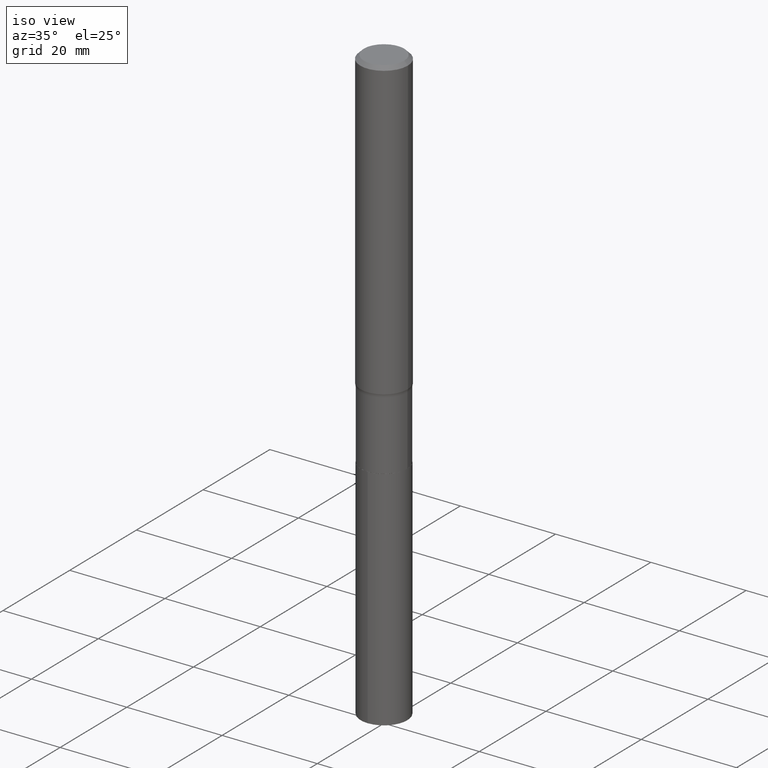
[diagram: clean part render]
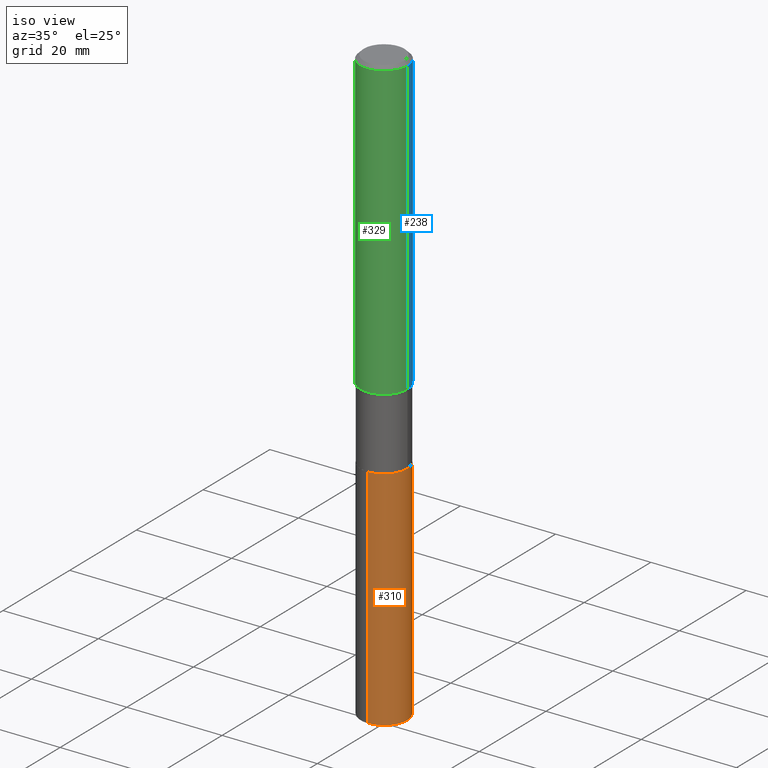
[diagram: same view with three faces highlighted in distinct colors, each labeled with its STEP entity id]
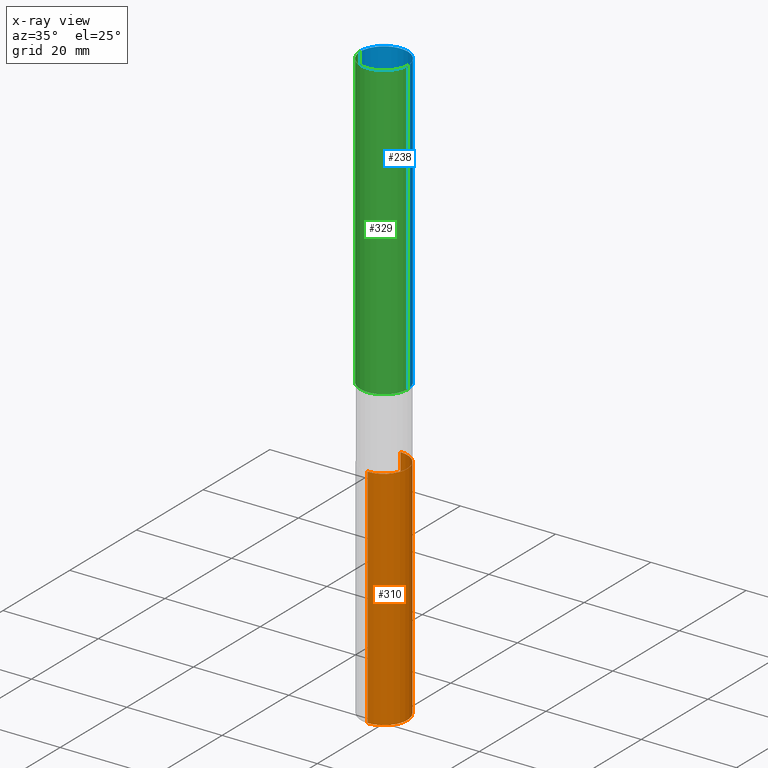
[diagram: x-ray of the same camera — body ghosted, the three highlighted faces saturated]
A machine part, iso view with three faces highlighted in distinct colors.
The next image is the same camera in x-ray (body ghosted, the three faces saturated) — at least one of them is partly hidden behind the body in this view.
Their STEP definitions:

[orange] entity #310 — the highlighted cylindrical surface (edge-blend (fillet) strip) has radius 4.8997 mm, axis along (-0, 0, 1).
#12 = DIRECTION ( 'NONE',  ( -2.445466196410267500E-29, 3.491485076189297312E-15, 1.000000000000000000 ) ) ;
#17 = DIRECTION ( 'NONE',  ( -2.445466196410267781E-29, 3.491485076189296917E-15, 1.000000000000000000 ) ) ;
#36 = VECTOR ( 'NONE', #391, 39.37007874015748143 ) ;
#43 = DIRECTION ( 'NONE',  ( -2.445466196410267781E-29, 3.491485076189296917E-15, 1.000000000000000000 ) ) ;
#51 = EDGE_LOOP ( 'NONE', ( #159, #268, #207, #226 ) ) ;
#91 = CARTESIAN_POINT ( 'NONE',  ( -1.347013500525606121E-15, -0.1929000000000105908, -3.042299999999998672 ) ) ;
#97 = EDGE_CURVE ( 'NONE', #264, #194, #311, .T. ) ;
#100 = DIRECTION ( 'NONE',  ( -6.982962677686265133E-15, -1.000000000000000000, 2.832398127179122126E-15 ) ) ;
#108 = CARTESIAN_POINT ( 'NONE',  ( 1.370636937281307327E-15, 0.1928999999999893578, -3.042300000000000004 ) ) ;
#128 = DIRECTION ( 'NONE',  ( -6.982962677686265133E-15, -1.000000000000000000, 2.832398127179122126E-15 ) ) ;
#142 = CARTESIAN_POINT ( 'NONE',  ( 1.203488073211193522E-28, -1.718263413532219501E-14, -4.921300000000000452 ) ) ;
#150 = EDGE_CURVE ( 'NONE', #194, #410, #437, .T. ) ;
#159 = ORIENTED_EDGE ( 'NONE', *, *, #269, .T. ) ;
#161 = CARTESIAN_POINT ( 'NONE',  ( 1.370636937281330401E-15, 0.1928999999999828074, -4.921300000000002228 ) ) ;
#194 = VERTEX_POINT ( 'NONE', #246 ) ;
#202 = DIRECTION ( 'NONE',  ( -6.982962677686265133E-15, -1.000000000000000000, 5.664796254358244252E-15 ) ) ;
#204 = VECTOR ( 'NONE', #12, 39.37007874015748143 ) ;
#207 = ORIENTED_EDGE ( 'NONE', *, *, #150, .F. ) ;
#222 = CARTESIAN_POINT ( 'NONE',  ( 7.439849749057039047E-29, -1.062213367716249950E-14, -3.042299999999999560 ) ) ;
#226 = ORIENTED_EDGE ( 'NONE', *, *, #97, .F. ) ;
#242 = AXIS2_PLACEMENT_3D ( 'NONE', #142, #330, #202 ) ;
#246 = CARTESIAN_POINT ( 'NONE',  ( -1.347013500525606121E-15, -0.1929000000000105908, -3.042299999999998672 ) ) ;
#264 = VERTEX_POINT ( 'NONE', #434 ) ;
#268 = ORIENTED_EDGE ( 'NONE', *, *, #290, .T. ) ;
#269 = EDGE_CURVE ( 'NONE', #264, #405, #438, .T. ) ;
#290 = EDGE_CURVE ( 'NONE', #405, #410, #413, .T. ) ;
#310 = ADVANCED_FACE ( 'NONE', ( #460 ), #359, .T. ) ;
#311 = LINE ( 'NONE', #91, #204 ) ;
#315 = AXIS2_PLACEMENT_3D ( 'NONE', #448, #17, #128 ) ;
#330 = DIRECTION ( 'NONE',  ( -2.445466196410267781E-29, 3.491485076189296917E-15, 1.000000000000000000 ) ) ;
#359 = CYLINDRICAL_SURFACE ( 'NONE', #451, 0.1928999999999999881 ) ;
#386 = CARTESIAN_POINT ( 'NONE',  ( 1.370636937281353870E-15, 0.1928999999999893855, -3.042300000000000004 ) ) ;
#391 = DIRECTION ( 'NONE',  ( -2.445466196410267500E-29, 3.491485076189297312E-15, 1.000000000000000000 ) ) ;
#405 = VERTEX_POINT ( 'NONE', #161 ) ;
#410 = VERTEX_POINT ( 'NONE', #386 ) ;
#413 = LINE ( 'NONE', #108, #36 ) ;
#434 = CARTESIAN_POINT ( 'NONE',  ( -1.347013500525560170E-15, -0.1929000000000171411, -4.921299999999999564 ) ) ;
#437 = CIRCLE ( 'NONE', #315, 0.1928999999999999881 ) ;
#438 = CIRCLE ( 'NONE', #242, 0.1928999999999999881 ) ;
#448 = CARTESIAN_POINT ( 'NONE',  ( 7.439849749057039047E-29, -1.062213367716249950E-14, -3.042299999999999560 ) ) ;
#451 = AXIS2_PLACEMENT_3D ( 'NONE', #222, #43, #100 ) ;
#460 = FACE_OUTER_BOUND ( 'NONE', #51, .T. ) ;

[blue] entity #238 — the highlighted cylindrical surface (edge-blend (fillet) strip) has radius 5 mm, axis along (-0, 0, 1).
#8 = VECTOR ( 'NONE', #34, 39.37007874015748143 ) ;
#15 = CIRCLE ( 'NONE', #302, 0.1968500000000003580 ) ;
#20 = DIRECTION ( 'NONE',  ( -2.445468806185136597E-29, 3.491481338843145583E-15, 1.000000000000000000 ) ) ;
#23 = CIRCLE ( 'NONE', #369, 0.1968500000000000250 ) ;
#24 = CARTESIAN_POINT ( 'NONE',  ( 0.1968500000000000250, -1.477690918335233294E-15, -0.02952750000000018901 ) ) ;
#34 = DIRECTION ( 'NONE',  ( -2.445468806185136877E-29, 3.491481338843145188E-15, 1.000000000000000000 ) ) ;
#80 = VERTEX_POINT ( 'NONE', #24 ) ;
#111 = EDGE_LOOP ( 'NONE', ( #160, #231, #321, #263 ) ) ;
#123 = VERTEX_POINT ( 'NONE', #343 ) ;
#124 = DIRECTION ( 'NONE',  ( -2.445468806185136877E-29, 3.491481338843145188E-15, 1.000000000000000000 ) ) ;
#127 = CARTESIAN_POINT ( 'NONE',  ( 0.1968500000000001915, -1.374596203102542989E-15, 9.598753983154309266E-30 ) ) ;
#148 = FACE_OUTER_BOUND ( 'NONE', #111, .T. ) ;
#160 = ORIENTED_EDGE ( 'NONE', *, *, #337, .T. ) ;
#198 = EDGE_CURVE ( 'NONE', #123, #80, #385, .T. ) ;
#221 = DIRECTION ( 'NONE',  ( -2.445468806185136597E-29, 3.491481338843145583E-15, 1.000000000000000000 ) ) ;
#227 = DIRECTION ( 'NONE',  ( 1.000000000000000000, -6.982962677686266711E-15, 4.876176775795935793E-29 ) ) ;
#231 = ORIENTED_EDGE ( 'NONE', *, *, #468, .T. ) ;
#238 = ADVANCED_FACE ( 'NONE', ( #148 ), #351, .T. ) ;
#263 = ORIENTED_EDGE ( 'NONE', *, *, #198, .F. ) ;
#293 = AXIS2_PLACEMENT_3D ( 'NONE', #456, #221, #227 ) ;
#296 = CARTESIAN_POINT ( 'NONE',  ( -0.1968500000000003858, -7.143459362756318299E-15, -2.446572646133748030 ) ) ;
#302 = AXIS2_PLACEMENT_3D ( 'NONE', #322, #20, #452 ) ;
#314 = CARTESIAN_POINT ( 'NONE',  ( 7.220858017463208610E-31, -1.030947152326916486E-16, -0.02952750000000018901 ) ) ;
#316 = DIRECTION ( 'NONE',  ( 1.000000000000000000, -6.982962677686265922E-15, 0.000000000000000000 ) ) ;
#321 = ORIENTED_EDGE ( 'NONE', *, *, #360, .F. ) ;
#322 = CARTESIAN_POINT ( 'NONE',  ( 5.983017088185907655E-29, -8.542162738100076875E-15, -2.446572646133748030 ) ) ;
#337 = EDGE_CURVE ( 'NONE', #123, #459, #15, .T. ) ;
#343 = CARTESIAN_POINT ( 'NONE',  ( 0.1968500000000003858, -9.916758941202621639E-15, -2.446572646133748030 ) ) ;
#349 = CARTESIAN_POINT ( 'NONE',  ( -0.1968500000000000250, -2.923925351322623732E-15, -0.02952750000000018901 ) ) ;
#351 = CYLINDRICAL_SURFACE ( 'NONE', #293, 0.1968500000000001915 ) ;
#357 = CARTESIAN_POINT ( 'NONE',  ( -0.1968500000000001915, 1.398703375343758577E-15, -9.682923725166790684E-30 ) ) ;
#360 = EDGE_CURVE ( 'NONE', #80, #427, #23, .T. ) ;
#369 = AXIS2_PLACEMENT_3D ( 'NONE', #314, #445, #316 ) ;
#385 = LINE ( 'NONE', #127, #422 ) ;
#422 = VECTOR ( 'NONE', #124, 39.37007874015748143 ) ;
#427 = VERTEX_POINT ( 'NONE', #349 ) ;
#429 = LINE ( 'NONE', #357, #8 ) ;
#445 = DIRECTION ( 'NONE',  ( -2.445468806185136597E-29, 3.491481338843145583E-15, 1.000000000000000000 ) ) ;
#452 = DIRECTION ( 'NONE',  ( 1.000000000000000000, -6.982962677686269866E-15, 0.000000000000000000 ) ) ;
#456 = CARTESIAN_POINT ( 'NONE',  ( 0.000000000000000000, 0.000000000000000000, 0.000000000000000000 ) ) ;
#459 = VERTEX_POINT ( 'NONE', #296 ) ;
#468 = EDGE_CURVE ( 'NONE', #459, #427, #429, .T. ) ;

[green] entity #329 — the highlighted cylindrical surface (edge-blend (fillet) strip) has radius 5 mm, axis along (-0, 0, 1).
#8 = VECTOR ( 'NONE', #34, 39.37007874015748143 ) ;
#24 = CARTESIAN_POINT ( 'NONE',  ( 0.1968500000000000250, -1.477690918335233294E-15, -0.02952750000000018901 ) ) ;
#26 = DIRECTION ( 'NONE',  ( 1.000000000000000000, -6.982962677686265922E-15, 0.000000000000000000 ) ) ;
#28 = DIRECTION ( 'NONE',  ( -2.445468806185136597E-29, 3.491481338843145583E-15, 1.000000000000000000 ) ) ;
#34 = DIRECTION ( 'NONE',  ( -2.445468806185136877E-29, 3.491481338843145188E-15, 1.000000000000000000 ) ) ;
#49 = AXIS2_PLACEMENT_3D ( 'NONE', #90, #96, #26 ) ;
#69 = CIRCLE ( 'NONE', #49, 0.1968500000000000250 ) ;
#80 = VERTEX_POINT ( 'NONE', #24 ) ;
#90 = CARTESIAN_POINT ( 'NONE',  ( 7.220858017463208610E-31, -1.030947152326916486E-16, -0.02952750000000018901 ) ) ;
#96 = DIRECTION ( 'NONE',  ( -2.445468806185136597E-29, 3.491481338843145583E-15, 1.000000000000000000 ) ) ;
#113 = ORIENTED_EDGE ( 'NONE', *, *, #347, .F. ) ;
#117 = EDGE_CURVE ( 'NONE', #459, #123, #432, .T. ) ;
#123 = VERTEX_POINT ( 'NONE', #343 ) ;
#124 = DIRECTION ( 'NONE',  ( -2.445468806185136877E-29, 3.491481338843145188E-15, 1.000000000000000000 ) ) ;
#127 = CARTESIAN_POINT ( 'NONE',  ( 0.1968500000000001915, -1.374596203102542989E-15, 9.598753983154309266E-30 ) ) ;
#129 = ORIENTED_EDGE ( 'NONE', *, *, #468, .F. ) ;
#154 = ORIENTED_EDGE ( 'NONE', *, *, #198, .T. ) ;
#181 = CYLINDRICAL_SURFACE ( 'NONE', #233, 0.1968500000000001915 ) ;
#182 = DIRECTION ( 'NONE',  ( 1.000000000000000000, -6.982962677686266711E-15, 4.876176775795935793E-29 ) ) ;
#198 = EDGE_CURVE ( 'NONE', #123, #80, #385, .T. ) ;
#210 = DIRECTION ( 'NONE',  ( 1.000000000000000000, -6.982962677686269866E-15, 0.000000000000000000 ) ) ;
#213 = FACE_OUTER_BOUND ( 'NONE', #344, .T. ) ;
#233 = AXIS2_PLACEMENT_3D ( 'NONE', #373, #28, #182 ) ;
#241 = CARTESIAN_POINT ( 'NONE',  ( 5.983017088185907655E-29, -8.542162738100076875E-15, -2.446572646133748030 ) ) ;
#286 = ORIENTED_EDGE ( 'NONE', *, *, #117, .T. ) ;
#296 = CARTESIAN_POINT ( 'NONE',  ( -0.1968500000000003858, -7.143459362756318299E-15, -2.446572646133748030 ) ) ;
#323 = AXIS2_PLACEMENT_3D ( 'NONE', #241, #415, #210 ) ;
#329 = ADVANCED_FACE ( 'NONE', ( #213 ), #181, .T. ) ;
#343 = CARTESIAN_POINT ( 'NONE',  ( 0.1968500000000003858, -9.916758941202621639E-15, -2.446572646133748030 ) ) ;
#344 = EDGE_LOOP ( 'NONE', ( #129, #286, #154, #113 ) ) ;
#347 = EDGE_CURVE ( 'NONE', #427, #80, #69, .T. ) ;
#349 = CARTESIAN_POINT ( 'NONE',  ( -0.1968500000000000250, -2.923925351322623732E-15, -0.02952750000000018901 ) ) ;
#357 = CARTESIAN_POINT ( 'NONE',  ( -0.1968500000000001915, 1.398703375343758577E-15, -9.682923725166790684E-30 ) ) ;
#373 = CARTESIAN_POINT ( 'NONE',  ( 0.000000000000000000, 0.000000000000000000, 0.000000000000000000 ) ) ;
#385 = LINE ( 'NONE', #127, #422 ) ;
#415 = DIRECTION ( 'NONE',  ( -2.445468806185136597E-29, 3.491481338843145583E-15, 1.000000000000000000 ) ) ;
#422 = VECTOR ( 'NONE', #124, 39.37007874015748143 ) ;
#427 = VERTEX_POINT ( 'NONE', #349 ) ;
#429 = LINE ( 'NONE', #357, #8 ) ;
#432 = CIRCLE ( 'NONE', #323, 0.1968500000000003580 ) ;
#459 = VERTEX_POINT ( 'NONE', #296 ) ;
#468 = EDGE_CURVE ( 'NONE', #459, #427, #429, .T. ) ;